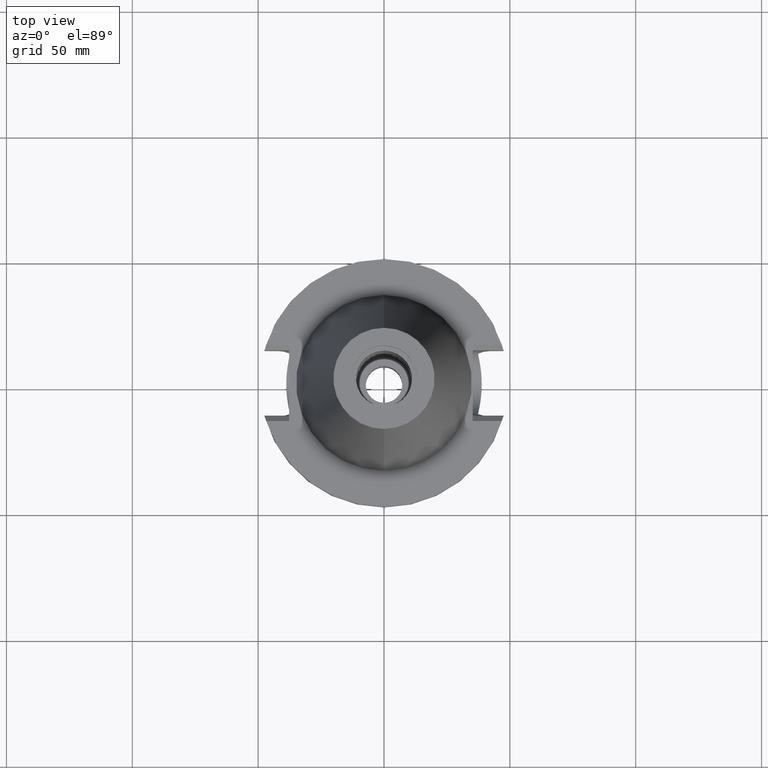
[diagram: clean part render]
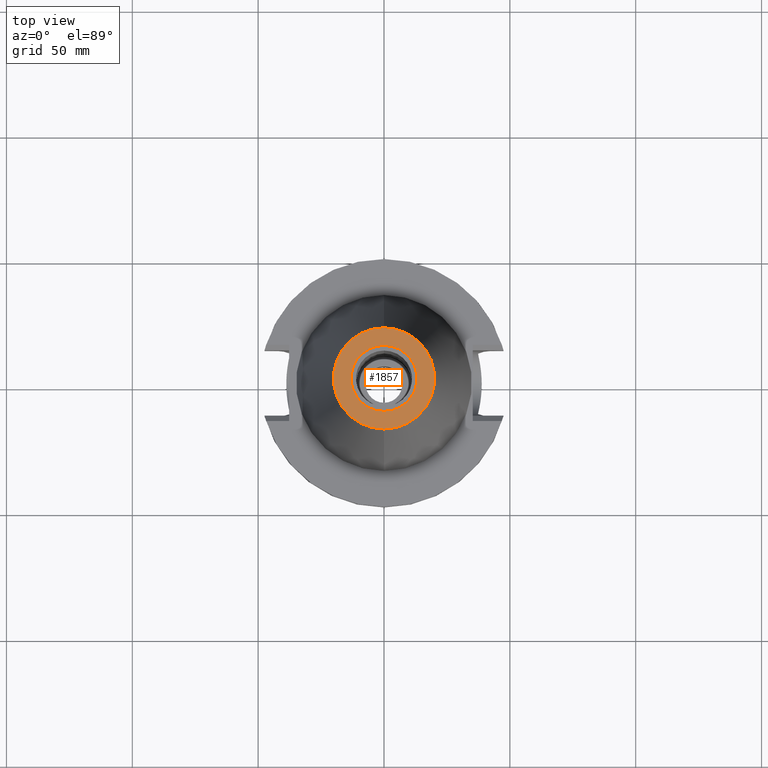
[diagram: same view with one face highlighted and labeled with its STEP entity id]
A machine part, top view. The second image highlights one B-rep face of the part: STEP entity #1857.
In plain terms, the highlighted planar face has unit normal (0, 0, -1).
Its self-contained STEP definition (entity closure, byte-faithful):
#17=CARTESIAN_POINT('',(0.E0,0.E0,1.016E2));
#18=DIRECTION('',(0.E0,0.E0,-1.E0));
#19=DIRECTION('',(0.E0,-1.E0,0.E0));
#20=AXIS2_PLACEMENT_3D('',#17,#18,#19);
#26=CARTESIAN_POINT('',(0.E0,0.E0,1.016E2));
#27=DIRECTION('',(0.E0,0.E0,-1.E0));
#28=DIRECTION('',(0.E0,1.E0,0.E0));
#29=AXIS2_PLACEMENT_3D('',#26,#27,#28);
#34=CARTESIAN_POINT('',(0.E0,1.401240867584E-14,1.016E2));
#35=DIRECTION('',(0.E0,0.E0,1.E0));
#36=DIRECTION('',(0.E0,-1.E0,0.E0));
#37=AXIS2_PLACEMENT_3D('',#34,#35,#36);
#42=CARTESIAN_POINT('',(0.E0,1.401240867584E-14,1.016E2));
#43=DIRECTION('',(0.E0,0.E0,1.E0));
#44=DIRECTION('',(0.E0,1.E0,0.E0));
#45=AXIS2_PLACEMENT_3D('',#42,#43,#44);
#1590=CARTESIAN_POINT('',(0.E0,-2.010832422388E1,1.016E2));
#1591=CARTESIAN_POINT('',(0.E0,2.010832422388E1,1.016E2));
#1592=VERTEX_POINT('',#1590);
#1593=VERTEX_POINT('',#1591);
#1594=CARTESIAN_POINT('',(0.E0,-1.3115E1,1.016E2));
#1595=CARTESIAN_POINT('',(0.E0,1.3115E1,1.016E2));
#1596=VERTEX_POINT('',#1594);
#1597=VERTEX_POINT('',#1595);
#1840=CARTESIAN_POINT('',(0.E0,1.244241147934E-14,1.016E2));
#1841=DIRECTION('',(0.E0,0.E0,-1.E0));
#1842=DIRECTION('',(0.E0,-1.E0,0.E0));
#1843=AXIS2_PLACEMENT_3D('',#1840,#1841,#1842);
#1844=PLANE('',#1843);
#1846=ORIENTED_EDGE('',*,*,#1845,.T.);
#1848=ORIENTED_EDGE('',*,*,#1847,.T.);
#1849=EDGE_LOOP('',(#1846,#1848));
#1850=FACE_OUTER_BOUND('',#1849,.F.);
#1852=ORIENTED_EDGE('',*,*,#1851,.T.);
#1854=ORIENTED_EDGE('',*,*,#1853,.T.);
#1855=EDGE_LOOP('',(#1852,#1854));
#1856=FACE_BOUND('',#1855,.F.);
#21=CIRCLE('',#20,2.010832422388E1);
#30=CIRCLE('',#29,2.010832422388E1);
#38=CIRCLE('',#37,1.3115E1);
#46=CIRCLE('',#45,1.3115E1);
#1845=EDGE_CURVE('',#1592,#1593,#21,.T.);
#1847=EDGE_CURVE('',#1593,#1592,#30,.T.);
#1851=EDGE_CURVE('',#1596,#1597,#38,.T.);
#1853=EDGE_CURVE('',#1597,#1596,#46,.T.);
#1857=ADVANCED_FACE('',(#1850,#1856),#1844,.F.);